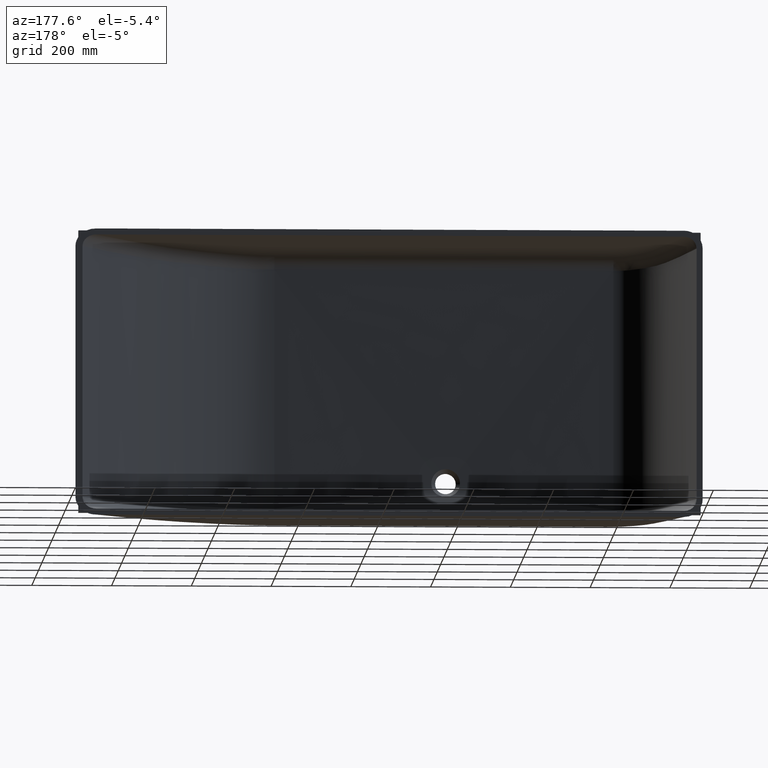
[diagram: clean part render]
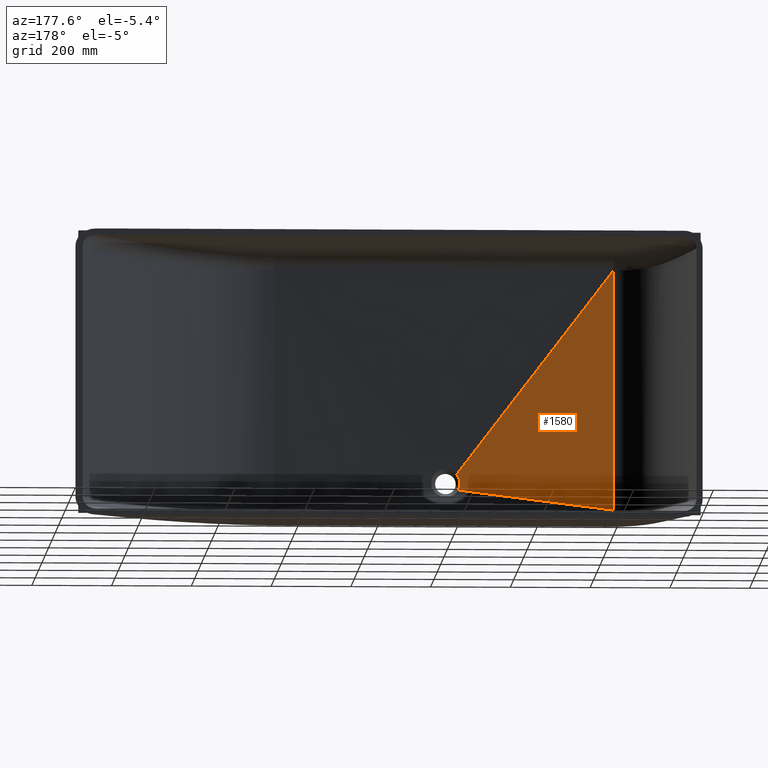
[diagram: same view with one face highlighted and labeled with its STEP entity id]
A machine part, auxiliary view. The second image highlights one B-rep face of the part: STEP entity #1580.
In plain terms, the highlighted face is a freeform B-spline surface patch.
Its self-contained STEP definition (entity closure, byte-faithful):
#160 = B_SPLINE_SURFACE_WITH_KNOTS ( 'NONE', 3, 1, ( 
 ( #1790, #1775 ),
 ( #2143, #2107 ),
 ( #2082, #2006 ),
 ( #1994, #3326 ),
 ( #4451, #4437 ),
 ( #4601, #2642 ),
 ( #4393, #4383 ),
 ( #4410, #4345 ),
 ( #4342, #4329 ),
 ( #4291, #4300 ),
 ( #4165, #4135 ),
 ( #8483, #4115 ),
 ( #4045, #4018 ),
 ( #4009, #3945 ),
 ( #4004, #3971 ),
 ( #3896, #3933 ),
 ( #3911, #3832 ),
 ( #3821, #3808 ),
 ( #3777, #3728 ),
 ( #3731, #3763 ),
 ( #3710, #3677 ),
 ( #3616, #3663 ),
 ( #3630, #3496 ),
 ( #3548, #3570 ) ),
 .UNSPECIFIED., .F., .F., .F.,
 ( 4, 3, 2, 2, 2, 2, 2, 2, 2, 3, 4 ),
 ( 2, 2 ),
 ( -0.01049333884968759200, 0.0000000000000000000, 0.1250000000000000000, 0.2500000000000000000, 0.3750000000000000000, 0.5000000000000000000, 0.6250000000000000000, 0.7500000000000000000, 0.8750000000000000000, 1.000000000000000000, 1.011008502230461100 ),
 ( 0.0000000000000000000, 1.000000000000000000 ),
 .UNSPECIFIED. ) ;
#550 = CARTESIAN_POINT ( 'NONE',  ( 190.0000000000002000, -450.0000000000000600, 645.9896084431670700 ) ) ;
#803 = VERTEX_POINT ( 'NONE', #4829 ) ;
#1580 = ADVANCED_FACE ( 'NONE', ( #10737 ), #160, .F. ) ;
#1700 = ORIENTED_EDGE ( 'NONE', *, *, #4686, .F. ) ;
#1775 = CARTESIAN_POINT ( 'NONE',  ( 588.9644007829714400, -460.0000000000000000, 125.2840772733777600 ) ) ;
#1790 = CARTESIAN_POINT ( 'NONE',  ( 190.0000000000001700, -450.0000000000000600, 652.3063803464250400 ) ) ;
#1852 = ORIENTED_EDGE ( 'NONE', *, *, #4851, .F. ) ;
#1994 = CARTESIAN_POINT ( 'NONE',  ( 190.0000000000001700, -450.0000000000000600, 645.9896084431671900 ) ) ;
#2006 = CARTESIAN_POINT ( 'NONE',  ( 588.8428920524585200, -460.0000000000000000, 125.1125058668594100 ) ) ;
#2082 = CARTESIAN_POINT ( 'NONE',  ( 190.0000000000001700, -450.0000000000000600, 648.0951990775864700 ) ) ;
#2107 = CARTESIAN_POINT ( 'NONE',  ( 588.9036464177149800, -460.0000000000000000, 125.1982915701185800 ) ) ;
#2143 = CARTESIAN_POINT ( 'NONE',  ( 190.0000000000001700, -450.0000000000000600, 650.2007897120057600 ) ) ;
#2642 = CARTESIAN_POINT ( 'NONE',  ( 587.3919747888078300, -460.0000000000001700, 122.9065678488946200 ) ) ;
#3283 = ORIENTED_EDGE ( 'NONE', *, *, #9643, .F. ) ;
#3293 = ORIENTED_EDGE ( 'NONE', *, *, #9620, .F. ) ;
#3326 = CARTESIAN_POINT ( 'NONE',  ( 588.7821376872020700, -460.0000000000000000, 125.0267201636002300 ) ) ;
#3496 = CARTESIAN_POINT ( 'NONE',  ( 588.9096118067394600, -460.0000000000000000, 94.79328524760435900 ) ) ;
#3548 = CARTESIAN_POINT ( 'NONE',  ( 190.0000000000001700, -450.0000000000000600, 37.38350200504822100 ) ) ;
#3570 = CARTESIAN_POINT ( 'NONE',  ( 588.9733488665082200, -460.0000000000000000, 94.70328795320666900 ) ) ;
#3616 = CARTESIAN_POINT ( 'NONE',  ( 190.0000000000001700, -450.0000000000000600, 41.80142837290448900 ) ) ;
#3630 = CARTESIAN_POINT ( 'NONE',  ( 190.0000000000001700, -450.0000000000000600, 39.59246518897635500 ) ) ;
#3663 = CARTESIAN_POINT ( 'NONE',  ( 588.8458747469708200, -460.0000000000000000, 94.88328254200205000 ) ) ;
#3677 = CARTESIAN_POINT ( 'NONE',  ( 588.7821376872020700, -460.0000000000000000, 94.97327983639975500 ) ) ;
#3710 = CARTESIAN_POINT ( 'NONE',  ( 190.0000000000001700, -450.0000000000000600, 44.01039155683261600 ) ) ;
#3728 = CARTESIAN_POINT ( 'NONE',  ( 587.3919747888078300, -460.0000000000001100, 97.09343215110537500 ) ) ;
#3731 = CARTESIAN_POINT ( 'NONE',  ( 190.0000000000001700, -450.0000000000000600, 69.09285892709630200 ) ) ;
#3763 = CARTESIAN_POINT ( 'NONE',  ( 588.0584123061919400, -460.0000000000001100, 95.99518650128501900 ) ) ;
#3777 = CARTESIAN_POINT ( 'NONE',  ( 190.0000000000001700, -450.0000000000000600, 94.17532629736000200 ) ) ;
#3808 = CARTESIAN_POINT ( 'NONE',  ( 586.2134610740179100, -460.0000000000001100, 99.42158501897530700 ) ) ;
#3821 = CARTESIAN_POINT ( 'NONE',  ( 190.0000000000001700, -450.0000000000000600, 144.3402610378875000 ) ) ;
#3832 = CARTESIAN_POINT ( 'NONE',  ( 585.7015673829814700, -460.0000000000001100, 100.6514608356046100 ) ) ;
#3896 = CARTESIAN_POINT ( 'NONE',  ( 190.0000000000001700, -450.0000000000001100, 219.5876631486789300 ) ) ;
#3911 = CARTESIAN_POINT ( 'NONE',  ( 190.0000000000001700, -450.0000000000000600, 169.4227284081512700 ) ) ;
#3933 = CARTESIAN_POINT ( 'NONE',  ( 584.8666386974317700, -460.0000000000000600, 103.2085964788866900 ) ) ;
#3945 = CARTESIAN_POINT ( 'NONE',  ( 584.1103994463435400, -460.0000000000000600, 107.2420093633085300 ) ) ;
#3971 = CARTESIAN_POINT ( 'NONE',  ( 584.5437677186449700, -460.0000000000000000, 104.5357372667786500 ) ) ;
#4004 = CARTESIAN_POINT ( 'NONE',  ( 190.0000000000001700, -450.0000000000000600, 244.6701305189427300 ) ) ;
#4009 = CARTESIAN_POINT ( 'NONE',  ( 190.0000000000001700, -450.0000000000000600, 294.8350652594705300 ) ) ;
#4018 = CARTESIAN_POINT ( 'NONE',  ( 584.0000000000000000, -459.9999999999999400, 108.6209501195916500 ) ) ;
#4045 = CARTESIAN_POINT ( 'NONE',  ( 190.0000000000001700, -450.0000000000000600, 319.9175326297343500 ) ) ;
#4115 = CARTESIAN_POINT ( 'NONE',  ( 584.0000000000001100, -460.0000000000000600, 111.3790498804083000 ) ) ;
#4135 = CARTESIAN_POINT ( 'NONE',  ( 584.1103994463435400, -460.0000000000000000, 112.7579906366914500 ) ) ;
#4165 = CARTESIAN_POINT ( 'NONE',  ( 190.0000000000001700, -450.0000000000000600, 395.1649347405262900 ) ) ;
#4264 = CARTESIAN_POINT ( 'NONE',  ( 190.0000000000027600, -450.0000000000001100, 44.01039155683277200 ) ) ;
#4291 = CARTESIAN_POINT ( 'NONE',  ( 190.0000000000001700, -450.0000000000000600, 445.3298694810542900 ) ) ;
#4300 = CARTESIAN_POINT ( 'NONE',  ( 584.5437677186450900, -460.0000000000000600, 115.4642627332212900 ) ) ;
#4329 = CARTESIAN_POINT ( 'NONE',  ( 584.8666386974316500, -459.9999999999999400, 116.7914035211132700 ) ) ;
#4342 = CARTESIAN_POINT ( 'NONE',  ( 190.0000000000001700, -450.0000000000000600, 470.4123368513183400 ) ) ;
#4345 = CARTESIAN_POINT ( 'NONE',  ( 585.7015673829813500, -460.0000000000000600, 119.3485391643953300 ) ) ;
#4383 = CARTESIAN_POINT ( 'NONE',  ( 586.2134610740178000, -460.0000000000001100, 120.5784149810246600 ) ) ;
#4393 = CARTESIAN_POINT ( 'NONE',  ( 190.0000000000001700, -450.0000000000000600, 545.6597389621105100 ) ) ;
#4408 = CARTESIAN_POINT ( 'NONE',  ( 578.0266683209730400, -459.7302920981214200, 93.59877046924403000 ) ) ;
#4410 = CARTESIAN_POINT ( 'NONE',  ( 190.0000000000001700, -450.0000000000001100, 520.5772715918464000 ) ) ;
#4437 = CARTESIAN_POINT ( 'NONE',  ( 588.0584123061920500, -459.9999999999999400, 124.0048134987149200 ) ) ;
#4451 = CARTESIAN_POINT ( 'NONE',  ( 190.0000000000001700, -450.0000000000000600, 620.9071410729029600 ) ) ;
#4601 = CARTESIAN_POINT ( 'NONE',  ( 190.0000000000001700, -450.0000000000000600, 595.8246737026388500 ) ) ;
#4686 = EDGE_CURVE ( 'NONE', #11229, #6123, #8439, .T. ) ;
#4829 = CARTESIAN_POINT ( 'NONE',  ( 582.4814969508005300, -459.8420029349122200, 133.2577809003835500 ) ) ;
#4851 = EDGE_CURVE ( 'NONE', #6123, #10899, #8145, .T. ) ;
#5253 = VECTOR ( 'NONE', #6567, 1000.000000000000000 ) ;
#5895 = VECTOR ( 'NONE', #5944, 1000.000000000000000 ) ;
#5944 = DIRECTION ( 'NONE',  ( -0.0000000000000000000, -0.0000000000000000000, -1.000000000000000000 ) ) ;
#6123 = VERTEX_POINT ( 'NONE', #4264 ) ;
#6192 = B_SPLINE_CURVE_WITH_KNOTS ( 'NONE', 3,
 ( #9692, #9740, #9056, #8985, #8949, #8907, #8888, #8825, #8811, #8780, #8741, #8568, #8480, #8350, #8303, #8260 ),
 .UNSPECIFIED., .F., .F.,
 ( 4, 2, 2, 2, 2, 2, 2, 4 ),
 ( 0.0000000000000000000, 0.1312297682589777000, 0.2855044933435640900, 0.4397792184281505400, 0.5940539435127368800, 0.7483286685973233900, 0.9026033936819097800, 1.000000000000000000 ),
 .UNSPECIFIED. ) ;
#6411 = CARTESIAN_POINT ( 'NONE',  ( 190.0000000000001700, -450.0000000000000600, 690.0000000000000000 ) ) ;
#6519 = CARTESIAN_POINT ( 'NONE',  ( 389.3910688436011500, -455.0000000000000600, 69.49183569661617800 ) ) ;
#6567 = DIRECTION ( 'NONE',  ( 0.9916260114830399700, -0.02486635979319741500, 0.1267261516060245700 ) ) ;
#7960 = DIRECTION ( 'NONE',  ( -0.6077629584359306400, 0.01524047596416284300, 0.7939722377045629300 ) ) ;
#7987 = CARTESIAN_POINT ( 'NONE',  ( 389.3910688436011500, -455.0000000000000600, 385.5081643033837500 ) ) ;
#8145 = LINE ( 'NONE', #6519, #5253 ) ;
#8260 = CARTESIAN_POINT ( 'NONE',  ( 582.4814969508005300, -459.8420029349122200, 133.2577809003835500 ) ) ;
#8303 = CARTESIAN_POINT ( 'NONE',  ( 581.5947980848875400, -459.8364387487372900, 132.1992786219976800 ) ) ;
#8350 = CARTESIAN_POINT ( 'NONE',  ( 580.7684889680483600, -459.8313212926729000, 131.0883125958820600 ) ) ;
#8439 = LINE ( 'NONE', #6411, #5895 ) ;
#8480 = CARTESIAN_POINT ( 'NONE',  ( 578.8280498499240100, -459.8163736741689700, 128.1383310405292700 ) ) ;
#8483 = CARTESIAN_POINT ( 'NONE',  ( 190.0000000000001700, -450.0000000000000600, 370.0824673702622900 ) ) ;
#8568 = CARTESIAN_POINT ( 'NONE',  ( 577.8065439122352700, -459.8070712571743000, 126.2336662153570900 ) ) ;
#8741 = CARTESIAN_POINT ( 'NONE',  ( 576.1065587702746600, -459.7877551128440200, 122.2380305362937500 ) ) ;
#8780 = CARTESIAN_POINT ( 'NONE',  ( 575.4308528673557200, -459.7778931413569700, 120.1361055363815900 ) ) ;
#8811 = CARTESIAN_POINT ( 'NONE',  ( 574.4844728906246000, -459.7598036060412600, 115.9215438765419600 ) ) ;
#8825 = CARTESIAN_POINT ( 'NONE',  ( 574.1983433727192500, -459.7514312189903200, 113.7784236970795000 ) ) ;
#8888 = CARTESIAN_POINT ( 'NONE',  ( 574.0141316931825500, -459.7374116498711500, 109.4183512557057700 ) ) ;
#8907 = CARTESIAN_POINT ( 'NONE',  ( 574.1205809929781500, -459.7318715701935000, 107.2208435825413600 ) ) ;
#8949 = CARTESIAN_POINT ( 'NONE',  ( 574.7220923009085700, -459.7249139680334300, 102.9008516239958500 ) ) ;
#8985 = CARTESIAN_POINT ( 'NONE',  ( 575.2235995835220600, -459.7234180233131200, 100.7496665698606100 ) ) ;
#9056 = CARTESIAN_POINT ( 'NONE',  ( 576.4801356999355400, -459.7248038451176100, 96.94571035768132100 ) ) ;
#9169 = LINE ( 'NONE', #7987, #11515 ) ;
#9620 = EDGE_CURVE ( 'NONE', #10899, #803, #6192, .T. ) ;
#9643 = EDGE_CURVE ( 'NONE', #803, #11229, #9169, .T. ) ;
#9692 = CARTESIAN_POINT ( 'NONE',  ( 578.0266683209730400, -459.7302920981214200, 93.59877046924403000 ) ) ;
#9740 = CARTESIAN_POINT ( 'NONE',  ( 577.1858893905929300, -459.7265598818378900, 95.25158630795753800 ) ) ;
#10737 = FACE_OUTER_BOUND ( 'NONE', #11685, .T. ) ;
#10899 = VERTEX_POINT ( 'NONE', #4408 ) ;
#11229 = VERTEX_POINT ( 'NONE', #550 ) ;
#11515 = VECTOR ( 'NONE', #7960, 1000.000000000000000 ) ;
#11685 = EDGE_LOOP ( 'NONE', ( #1852, #1700, #3283, #3293 ) ) ;